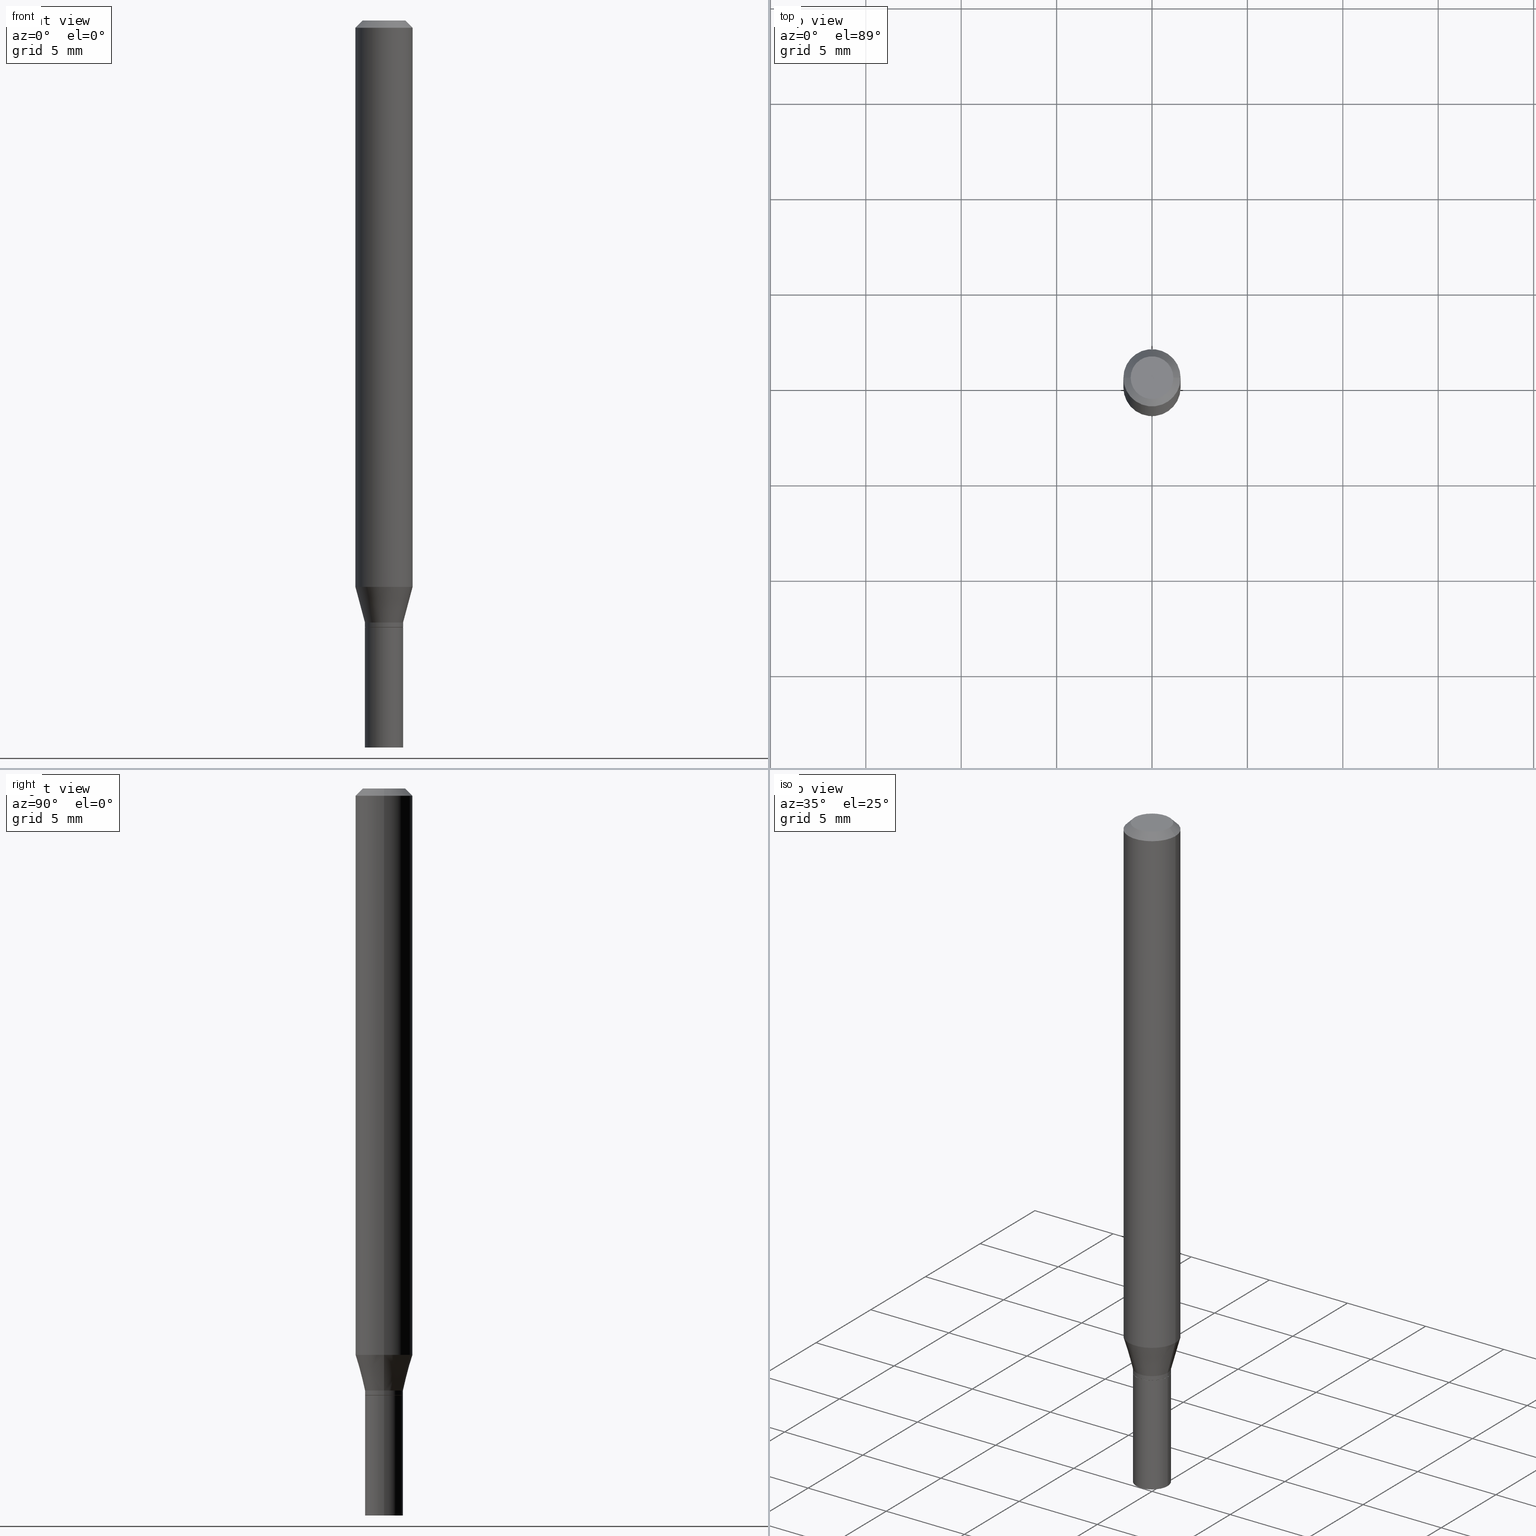
[diagram: canonical four-view strip — front | top / right | iso, engineering-drawing reading convention]
A machine part, canonical four-view strip (front | top / right | iso — engineering-drawing reading convention). The complete STEP part file that produces these views, byte-faithful:
ISO-10303-21;
HEADER;
FILE_DESCRIPTION (( 'STEP AP203' ),
    '1' );
FILE_NAME ('48801.STEP',
    '2024-03-12T19:52:40',
    ( '' ),
    ( '' ),
    'SwSTEP 2.0',
    'SolidWorks 2023',
    '' );
FILE_SCHEMA (( 'CONFIG_CONTROL_DESIGN' ));
ENDSEC;

DATA;
#1 = CIRCLE ( 'NONE', #65, 0.05904999999999999832 ) ;
#2 = AXIS2_PLACEMENT_3D ( 'NONE', #153, #81, #44 ) ;
#3 = VERTEX_POINT ( 'NONE', #158 ) ;
#4 = EDGE_CURVE ( 'NONE', #365, #29, #344, .T. ) ;
#5 =( CONVERSION_BASED_UNIT ( 'INCH', #345 ) LENGTH_UNIT ( ) NAMED_UNIT ( #381 ) );
#6 = CIRCLE ( 'NONE', #300, 0.03935000000000000303 ) ;
#7 = CALENDAR_DATE ( 2024, 12, 3 ) ;
#8 = EDGE_CURVE ( 'NONE', #72, #3, #341, .T. ) ;
#9 = DATE_AND_TIME ( #322, #155 ) ;
#10 = AXIS2_PLACEMENT_3D ( 'NONE', #242, #410, #137 ) ;
#11 = CC_DESIGN_APPROVAL ( #170, ( #68 ) ) ;
#12 = DIRECTION ( 'NONE',  ( -2.445468806185136597E-29, 3.491481338843145583E-15, 1.000000000000000000 ) ) ;
#13 = ORIENTED_EDGE ( 'NONE', *, *, #278, .T. ) ;
#14 = ADVANCED_FACE ( 'NONE', ( #347 ), #308, .F. ) ;
#15 = MANIFOLD_SOLID_BREP ( 'Body-Move/Copy2[1]', #112 ) ;
#16 = DIRECTION ( 'NONE',  ( -2.445468806185136597E-29, 3.491481338843145583E-15, 1.000000000000000000 ) ) ;
#17 = ORIENTED_EDGE ( 'NONE', *, *, #434, .F. ) ;
#19 = ORIENTED_EDGE ( 'NONE', *, *, #398, .F. ) ;
#18 = MANIFOLD_SOLID_BREP ( 'Body-Move/Copy2[2]', #77 ) ;
#20 = CARTESIAN_POINT ( 'NONE',  ( -0.03885000000000000259, -4.095288783388819989E-15, -1.252000000000000224 ) ) ;
#21 = DIRECTION ( 'NONE',  ( -2.445468806185136597E-29, 3.491481338843145583E-15, 1.000000000000000000 ) ) ;
#22 = CARTESIAN_POINT ( 'NONE',  ( 0.03935000000000000303, -5.512001589631673094E-15, -1.500000000000000222 ) ) ;
#23 = ORIENTED_EDGE ( 'NONE', *, *, #4, .T. ) ;
#24 = AXIS2_PLACEMENT_3D ( 'NONE', #151, #150, #427 ) ;
#25 = EDGE_LOOP ( 'NONE', ( #448, #351 ) ) ;
#26 = CARTESIAN_POINT ( 'NONE',  ( -0.04404999999999999888, 3.337856159934041534E-16, 3.533548453838689148E-16 ) ) ;
#27 = DIRECTION ( 'NONE',  ( -2.445468806185136597E-29, 3.491481338843145583E-15, 1.000000000000000000 ) ) ;
#28 = CARTESIAN_POINT ( 'NONE',  ( -0.03934999999999993364, 2.795985665215989516E-16, -1.935600958015302139E-30 ) ) ;
#29 = VERTEX_POINT ( 'NONE', #439 ) ;
#30 = ORIENTED_EDGE ( 'NONE', *, *, #305, .T. ) ;
#31 = DIRECTION ( 'NONE',  ( 0.7071067811865656694, -2.468850131082446387E-15, 0.7071067811865294761 ) ) ;
#32 = FACE_OUTER_BOUND ( 'NONE', #100, .T. ) ;
#33 = LINE ( 'NONE', #185, #342 ) ;
#34 = CC_DESIGN_PERSON_AND_ORGANIZATION_ASSIGNMENT ( #48, #375, ( #445 ) ) ;
#35 = EDGE_LOOP ( 'NONE', ( #385, #393, #359, #366 ) ) ;
#36 = DIRECTION ( 'NONE',  ( 1.000000000000000000, -6.982962677686269077E-15, 0.000000000000000000 ) ) ;
#37 = CONICAL_SURFACE ( 'NONE', #314, 0.03885000000000000259, 0.7853981633974739252 ) ;
#38 = ADVANCED_FACE ( 'NONE', ( #277 ), #422, .T. ) ;
#39 = AXIS2_PLACEMENT_3D ( 'NONE', #115, #405, #402 ) ;
#40 = LINE ( 'NONE', #465, #47 ) ;
#41 = APPROVAL_PERSON_ORGANIZATION ( #320, #170, #166 ) ;
#42 = CARTESIAN_POINT ( 'NONE',  ( 0.000000000000000000, 0.000000000000000000, 0.000000000000000000 ) ) ;
#43 = DIRECTION ( 'NONE',  ( 1.000000000000000000, -6.982962677686266711E-15, 0.000000000000000000 ) ) ;
#44 = DIRECTION ( 'NONE',  ( 1.000000000000000000, -6.982962677686269077E-15, 0.000000000000000000 ) ) ;
#45 = EDGE_CURVE ( 'NONE', #423, #255, #335, .T. ) ;
#46 = EDGE_CURVE ( 'NONE', #179, #148, #451, .T. ) ;
#47 = VECTOR ( 'NONE', #268, 39.37007874015748143 ) ;
#48 = PERSON_AND_ORGANIZATION ( #160, #349 ) ;
#49 = CARTESIAN_POINT ( 'NONE',  ( 2.857477964771687293E-29, -4.079721223563434330E-15, -1.168478599090893244 ) ) ;
#50 = PLANE ( 'NONE',  #10 ) ;
#51 = SHAPE_DEFINITION_REPRESENTATION ( #131, #224 ) ;
#52 = ADVANCED_FACE ( 'NONE', ( #213 ), #98, .F. ) ;
#53 = EDGE_LOOP ( 'NONE', ( #454, #97, #418, #63 ) ) ;
#54 = COORDINATED_UNIVERSAL_TIME_OFFSET ( 5, 0, .BEHIND. ) ;
#55 = DESIGN_CONTEXT ( 'detailed design', #273, 'design' ) ;
#56 = AXIS2_PLACEMENT_3D ( 'NONE', #225, #459, #426 ) ;
#57 = ORIENTED_EDGE ( 'NONE', *, *, #319, .F. ) ;
#58 = APPROVAL_DATE_TIME ( #162, #355 ) ;
#59 = VERTEX_POINT ( 'NONE', #363 ) ;
#60 = FACE_OUTER_BOUND ( 'NONE', #53, .T. ) ;
#61 = DIRECTION ( 'NONE',  ( 1.000000000000000000, -6.982962677686256455E-15, 0.000000000000000000 ) ) ;
#62 = ORIENTED_EDGE ( 'NONE', *, *, #229, .T. ) ;
#63 = ORIENTED_EDGE ( 'NONE', *, *, #101, .F. ) ;
#64 = CARTESIAN_POINT ( 'NONE',  ( 3.668203209277704895E-29, -5.237222008264718177E-15, -1.500000000000000222 ) ) ;
#65 = AXIS2_PLACEMENT_3D ( 'NONE', #49, #202, #186 ) ;
#66 = FACE_OUTER_BOUND ( 'NONE', #139, .T. ) ;
#67 = EDGE_LOOP ( 'NONE', ( #360, #295, #85, #415 ) ) ;
#68 = PRODUCT_DEFINITION_FORMATION_WITH_SPECIFIED_SOURCE ( 'ANY', '', #208, .NOT_KNOWN. ) ;
#69 = VERTEX_POINT ( 'NONE', #26 ) ;
#70 = CC_DESIGN_PERSON_AND_ORGANIZATION_ASSIGNMENT ( #156, #312, ( #208 ) ) ;
#71 = CYLINDRICAL_SURFACE ( 'NONE', #437, 0.05905000000000000526 ) ;
#72 = VERTEX_POINT ( 'NONE', #331 ) ;
#73 = CARTESIAN_POINT ( 'NONE',  ( 3.037272257281939846E-29, -4.336419822843186836E-15, -1.241999999999999993 ) ) ;
#74 = DIRECTION ( 'NONE',  ( -2.445468806185136597E-29, 3.491481338843145583E-15, 1.000000000000000000 ) ) ;
#75 = CARTESIAN_POINT ( 'NONE',  ( 0.05905000000000001914, -4.574846268510562433E-16, -0.01499999999999999944 ) ) ;
#76 = DIRECTION ( 'NONE',  ( 2.445468806185136597E-29, -3.491481338843145583E-15, -1.000000000000000000 ) ) ;
#77 = CLOSED_SHELL ( 'NONE', ( #464, #174, #193, #346, #38, #106, #220, #324, #14, #124, #133, #122 ) ) ;
#78 = FACE_OUTER_BOUND ( 'NONE', #94, .T. ) ;
#79 = MECHANICAL_CONTEXT ( 'NONE', #466, 'mechanical' ) ;
#80 =( NAMED_UNIT ( * ) SI_UNIT ( $, .STERADIAN. ) SOLID_ANGLE_UNIT ( ) );
#81 = DIRECTION ( 'NONE',  ( -2.445468806185136597E-29, 3.491481338843145583E-15, 1.000000000000000000 ) ) ;
#82 = AXIS2_PLACEMENT_3D ( 'NONE', #432, #114, #199 ) ;
#83 = APPROVAL_PERSON_ORGANIZATION ( #377, #355, #441 ) ;
#84 =( LENGTH_UNIT ( ) NAMED_UNIT ( * ) SI_UNIT ( $, .METRE. ) );
#85 = ORIENTED_EDGE ( 'NONE', *, *, #8, .F. ) ;
#86 = DATE_AND_TIME ( #283, #104 ) ;
#87 = CC_DESIGN_APPROVAL ( #118, ( #445 ) ) ;
#88 = DIRECTION ( 'NONE',  ( 1.000000000000000000, -6.982962677686266711E-15, 4.876176775795935793E-29 ) ) ;
#89 = EDGE_CURVE ( 'NONE', #59, #365, #455, .T. ) ;
#90 = PERSON_AND_ORGANIZATION ( #160, #349 ) ;
#91 = CARTESIAN_POINT ( 'NONE',  ( 3.037272257281939846E-29, -4.336419822843186836E-15, -1.241999999999999993 ) ) ;
#92 = ORIENTED_EDGE ( 'NONE', *, *, #198, .T. ) ;
#93 = ORIENTED_EDGE ( 'NONE', *, *, #298, .F. ) ;
#94 = EDGE_LOOP ( 'NONE', ( #19, #412, #387, #262 ) ) ;
#95 = FACE_OUTER_BOUND ( 'NONE', #453, .T. ) ;
#96 = ORIENTED_EDGE ( 'NONE', *, *, #334, .T. ) ;
#97 = ORIENTED_EDGE ( 'NONE', *, *, #46, .T. ) ;
#98 = PLANE ( 'NONE',  #430 ) ;
#99 = CARTESIAN_POINT ( 'NONE',  ( 0.05905000000000000526, -4.123439461173741313E-16, 2.879382386107500571E-30 ) ) ;
#100 = EDGE_LOOP ( 'NONE', ( #362, #92, #243, #419 ) ) ;
#101 = EDGE_CURVE ( 'NONE', #135, #152, #296, .T. ) ;
#102 = CARTESIAN_POINT ( 'NONE',  ( 0.03935000000000000303, -2.747795813669546211E-16, 1.918775561275701074E-30 ) ) ;
#103 = DIRECTION ( 'NONE',  ( -2.445468806185136597E-29, 3.491481338843145583E-15, 1.000000000000000000 ) ) ;
#104 = LOCAL_TIME ( 15, 52, 40.00000000000000000, #125 ) ;
#105 = VERTEX_POINT ( 'NONE', #389 ) ;
#106 = ADVANCED_FACE ( 'NONE', ( #78 ), #399, .T. ) ;
#107 = CARTESIAN_POINT ( 'NONE',  ( -0.03934999999999992670, -4.089990329040599164E-15, -1.251500000000000279 ) ) ;
#108 = CARTESIAN_POINT ( 'NONE',  ( 3.060504210940699150E-29, -4.369588895562197771E-15, -1.251500000000000279 ) ) ;
#109 = CC_DESIGN_PERSON_AND_ORGANIZATION_ASSIGNMENT ( #239, #411, ( #68 ) ) ;
#110 = DIRECTION ( 'NONE',  ( -1.000000000000000000, 6.982962677686266711E-15, 0.000000000000000000 ) ) ;
#111 = DIRECTION ( 'NONE',  ( 1.000000000000000000, -6.982962677686266711E-15, 4.876176775795936353E-29 ) ) ;
#112 = CLOSED_SHELL ( 'NONE', ( #276, #390, #281, #52 ) ) ;
#113 = CIRCLE ( 'NONE', #280, 0.03935000000000000303 ) ;
#114 = DIRECTION ( 'NONE',  ( 2.438088387897960049E-29, -3.491481338843145188E-15, -1.000000000000000000 ) ) ;
#115 = CARTESIAN_POINT ( 'NONE',  ( 3.061726945343791391E-29, -4.371334636231619274E-15, -1.252000000000000224 ) ) ;
#116 = PERSON_AND_ORGANIZATION ( #160, #349 ) ;
#117 = PRODUCT_RELATED_PRODUCT_CATEGORY ( 'detail', '', ( #208 ) ) ;
#118 = APPROVAL ( #317, 'UNSPECIFIED' ) ;
#119 = CARTESIAN_POINT ( 'NONE',  ( 0.03934999999999993364, -2.747795813669541281E-16, 1.918775561275697570E-30 ) ) ;
#120 = AXIS2_PLACEMENT_3D ( 'NONE', #159, #311, #271 ) ;
#121 = CARTESIAN_POINT ( 'NONE',  ( 3.668203209277705088E-31, -5.237222008264718399E-17, -0.01499999999999999944 ) ) ;
#122 = ADVANCED_FACE ( 'NONE', ( #207 ), #203, .T. ) ;
#123 = CALENDAR_DATE ( 2024, 12, 3 ) ;
#124 = ADVANCED_FACE ( 'NONE', ( #209 ), #50, .F. ) ;
#125 = COORDINATED_UNIVERSAL_TIME_OFFSET ( 5, 0, .BEHIND. ) ;
#126 = AXIS2_PLACEMENT_3D ( 'NONE', #372, #228, #200 ) ;
#127 = APPROVAL_STATUS ( 'not_yet_approved' ) ;
#128 = CC_DESIGN_DATE_AND_TIME_ASSIGNMENT ( #357, #168, ( #445 ) ) ;
#129 = EDGE_CURVE ( 'NONE', #148, #152, #6, .T. ) ;
#130 = ORIENTED_EDGE ( 'NONE', *, *, #334, .F. ) ;
#131 = PRODUCT_DEFINITION_SHAPE ( 'NONE', 'NONE',  #445 ) ;
#132 = CIRCLE ( 'NONE', #274, 0.04404999999999999888 ) ;
#133 = ADVANCED_FACE ( 'NONE', ( #95 ), #154, .T. ) ;
#134 = AXIS2_PLACEMENT_3D ( 'NONE', #73, #417, #36 ) ;
#135 = VERTEX_POINT ( 'NONE', #22 ) ;
#136 = DIRECTION ( 'NONE',  ( -2.445468806185136597E-29, 3.491481338843145583E-15, 1.000000000000000000 ) ) ;
#137 = DIRECTION ( 'NONE',  ( 1.000000000000000000, -6.982962677686265922E-15, 4.876176775795935793E-29 ) ) ;
#138 = ORIENTED_EDGE ( 'NONE', *, *, #101, .T. ) ;
#139 = EDGE_LOOP ( 'NONE', ( #180, #285, #138, #356 ) ) ;
#140 = CARTESIAN_POINT ( 'NONE',  ( 0.03885000000000000259, -4.642622736259730395E-15, -1.252000000000000224 ) ) ;
#141 = DIRECTION ( 'NONE',  ( -2.445468806185136597E-29, 3.491481338843145583E-15, 1.000000000000000000 ) ) ;
#142 = EDGE_CURVE ( 'NONE', #379, #3, #409, .T. ) ;
#143 = EDGE_LOOP ( 'NONE', ( #329, #291, #204, #176 ) ) ;
#144 = CARTESIAN_POINT ( 'NONE',  ( -0.03935000000000000303, 2.795985665215994447E-16, -1.935600958015305291E-30 ) ) ;
#145 = AXIS2_PLACEMENT_3D ( 'NONE', #325, #250, #61 ) ;
#146 = LINE ( 'NONE', #28, #431 ) ;
#147 = VECTOR ( 'NONE', #254, 39.37007874015748143 ) ;
#148 = VERTEX_POINT ( 'NONE', #201 ) ;
#149 = CARTESIAN_POINT ( 'NONE',  ( 3.061726945343791391E-29, -4.371334636231619274E-15, -1.252000000000000224 ) ) ;
#150 = DIRECTION ( 'NONE',  ( -2.445468806185136597E-29, 3.491481338843145583E-15, 1.000000000000000000 ) ) ;
#151 = CARTESIAN_POINT ( 'NONE',  ( 2.857477964771687293E-29, -4.079721223563434330E-15, -1.168478599090893244 ) ) ;
#152 = VERTEX_POINT ( 'NONE', #350 ) ;
#153 = CARTESIAN_POINT ( 'NONE',  ( 3.037272257281939846E-29, -4.336419822843186836E-15, -1.241999999999999993 ) ) ;
#154 = CONICAL_SURFACE ( 'NONE', #145, 0.03885000000000000259, 0.7853981633974739252 ) ;
#155 = LOCAL_TIME ( 15, 52, 40.00000000000000000, #438 ) ;
#156 = PERSON_AND_ORGANIZATION ( #160, #349 ) ;
#157 = EDGE_CURVE ( 'NONE', #210, #379, #1, .T. ) ;
#158 = CARTESIAN_POINT ( 'NONE',  ( -0.05905000000000002608, -1.646471236356701803E-15, -0.01499999999999999944 ) ) ;
#159 = CARTESIAN_POINT ( 'NONE',  ( 3.061726945343791391E-29, -4.371334636231619274E-15, -1.252000000000000224 ) ) ;
#160 = PERSON ( 'UNSPECIFIED', 'UNSPECIFIED', 'UNSPECIFIED', ('UNSPECIFIED'), ('UNSPECIFIED'), ('UNSPECIFIED') ) ;
#161 = DIRECTION ( 'NONE',  ( 1.000000000000000000, 0.000000000000000000, 0.000000000000000000 ) ) ;
#162 = DATE_AND_TIME ( #123, #406 ) ;
#163 = AXIS2_PLACEMENT_3D ( 'NONE', #64, #181, #219 ) ;
#164 = CIRCLE ( 'NONE', #461, 0.03885000000000000259 ) ;
#165 = COORDINATED_UNIVERSAL_TIME_OFFSET ( 5, 0, .BEHIND. ) ;
#166 = APPROVAL_ROLE ( '' ) ;
#167 = EDGE_CURVE ( 'NONE', #105, #69, #132, .T. ) ;
#168 = DATE_TIME_ROLE ( 'creation_date' ) ;
#169 = CONICAL_SURFACE ( 'NONE', #449, 0.05905000000000001914, 0.7853981633974372878 ) ;
#170 = APPROVAL ( #127, 'UNSPECIFIED' ) ;
#171 = EDGE_LOOP ( 'NONE', ( #96, #30, #289, #416 ) ) ;
#172 = SECURITY_CLASSIFICATION_LEVEL ( 'unclassified' ) ;
#173 = CARTESIAN_POINT ( 'NONE',  ( 0.000000000000000000, 0.000000000000000000, 0.000000000000000000 ) ) ;
#174 = ADVANCED_FACE ( 'NONE', ( #184 ), #37, .T. ) ;
#175 = DIRECTION ( 'NONE',  ( 1.000000000000000000, -6.982962677686269077E-15, 0.000000000000000000 ) ) ;
#176 = ORIENTED_EDGE ( 'NONE', *, *, #373, .F. ) ;
#177 = CC_DESIGN_PERSON_AND_ORGANIZATION_ASSIGNMENT ( #90, #440, ( #371 ) ) ;
#178 = DIRECTION ( 'NONE',  ( -1.000000000000000000, 6.982962677686266711E-15, 0.000000000000000000 ) ) ;
#179 = VERTEX_POINT ( 'NONE', #458 ) ;
#180 = ORIENTED_EDGE ( 'NONE', *, *, #46, .F. ) ;
#181 = DIRECTION ( 'NONE',  ( -2.445468806185136597E-29, 3.491481338843145583E-15, 1.000000000000000000 ) ) ;
#182 = DIRECTION ( 'NONE',  ( 1.000000000000000000, -6.982962677686269077E-15, 0.000000000000000000 ) ) ;
#183 = ORIENTED_EDGE ( 'NONE', *, *, #45, .T. ) ;
#184 = FACE_OUTER_BOUND ( 'NONE', #212, .T. ) ;
#185 = CARTESIAN_POINT ( 'NONE',  ( 0.03934999999999993364, -4.611199404210140965E-15, -1.241999999999999993 ) ) ;
#186 = DIRECTION ( 'NONE',  ( 1.000000000000000000, -6.982962677686273021E-15, 0.000000000000000000 ) ) ;
#187 = CARTESIAN_POINT ( 'NONE',  ( 0.03934999999999992670, -4.644368476929151899E-15, -1.251500000000000279 ) ) ;
#188 = EDGE_CURVE ( 'NONE', #179, #135, #436, .T. ) ;
#189 = DIRECTION ( 'NONE',  ( 1.000000000000000000, -6.982962677686256455E-15, 0.000000000000000000 ) ) ;
#190 = DIRECTION ( 'NONE',  ( 2.445468806185136597E-29, -3.491481338843145583E-15, -1.000000000000000000 ) ) ;
#191 =( NAMED_UNIT ( * ) PLANE_ANGLE_UNIT ( ) SI_UNIT ( $, .RADIAN. ) );
#192 = CARTESIAN_POINT ( 'NONE',  ( 0.000000000000000000, 0.000000000000000000, 0.000000000000000000 ) ) ;
#193 = ADVANCED_FACE ( 'NONE', ( #32 ), #206, .T. ) ;
#194 = VECTOR ( 'NONE', #425, 39.37007874015748143 ) ;
#195 = VECTOR ( 'NONE', #266, 39.37007874015748143 ) ;
#196 = ORIENTED_EDGE ( 'NONE', *, *, #413, .F. ) ;
#197 = CYLINDRICAL_SURFACE ( 'NONE', #408, 0.05905000000000000526 ) ;
#198 = EDGE_CURVE ( 'NONE', #105, #72, #396, .T. ) ;
#199 = DIRECTION ( 'NONE',  ( -1.000000000000000000, 6.982962677686265922E-15, -4.876176775795935793E-29 ) ) ;
#200 = DIRECTION ( 'NONE',  ( 1.000000000000000000, -6.982962677686266711E-15, 0.000000000000000000 ) ) ;
#201 = CARTESIAN_POINT ( 'NONE',  ( -0.03935000000000000303, -4.524679755726570119E-15, -1.252000000000000224 ) ) ;
#202 = DIRECTION ( 'NONE',  ( -2.445468806185136597E-29, 3.491481338843145583E-15, 1.000000000000000000 ) ) ;
#203 = CYLINDRICAL_SURFACE ( 'NONE', #257, 0.03934999999999993364 ) ;
#204 = ORIENTED_EDGE ( 'NONE', *, *, #157, .F. ) ;
#205 = APPROVAL_ROLE ( '' ) ;
#206 = CONICAL_SURFACE ( 'NONE', #450, 0.05905000000000001914, 0.7853981633974372878 ) ;
#207 = FACE_OUTER_BOUND ( 'NONE', #294, .T. ) ;
#208 = PRODUCT ( '48801', '48801', '', ( #79 ) ) ;
#209 = FACE_OUTER_BOUND ( 'NONE', #414, .T. ) ;
#210 = VERTEX_POINT ( 'NONE', #404 ) ;
#211 = CARTESIAN_POINT ( 'NONE',  ( 3.060504210940699150E-29, -4.369588895562197771E-15, -1.251500000000000279 ) ) ;
#212 = EDGE_LOOP ( 'NONE', ( #380, #183, #130, #378 ) ) ;
#213 = FACE_OUTER_BOUND ( 'NONE', #25, .T. ) ;
#214 = VECTOR ( 'NONE', #376, 39.37007874015748143 ) ;
#215 = VECTOR ( 'NONE', #395, 39.37007874015748143 ) ;
#216 = DIRECTION ( 'NONE',  ( -2.445468806185136597E-29, 3.491481338843145583E-15, 1.000000000000000000 ) ) ;
#217 = ORIENTED_EDGE ( 'NONE', *, *, #434, .T. ) ;
#218 = ORIENTED_EDGE ( 'NONE', *, *, #240, .F. ) ;
#219 = DIRECTION ( 'NONE',  ( 1.000000000000000000, -6.982962677686269077E-15, 0.000000000000000000 ) ) ;
#220 = ADVANCED_FACE ( 'NONE', ( #340 ), #197, .T. ) ;
#221 = FACE_OUTER_BOUND ( 'NONE', #35, .T. ) ;
#222 = ORIENTED_EDGE ( 'NONE', *, *, #45, .F. ) ;
#223 = CARTESIAN_POINT ( 'NONE',  ( 3.668203209277705088E-31, -5.237222008264718399E-17, -0.01499999999999999944 ) ) ;
#224 = ADVANCED_BREP_SHAPE_REPRESENTATION ( '48801', ( #15, #18, #237 ), #443 ) ;
#225 = CARTESIAN_POINT ( 'NONE',  ( 3.576687321579069994E-29, -5.368277968210015545E-15, -1.500000000000000222 ) ) ;
#226 = CIRCLE ( 'NONE', #267, 0.03934999999999992670 ) ;
#227 = EDGE_CURVE ( 'NONE', #69, #3, #463, .T. ) ;
#228 = DIRECTION ( 'NONE',  ( -2.445468806185136597E-29, 3.491481338843145583E-15, 1.000000000000000000 ) ) ;
#229 = EDGE_CURVE ( 'NONE', #379, #210, #400, .T. ) ;
#230 = CARTESIAN_POINT ( 'NONE',  ( -0.03885000000000000259, -4.092639556214709577E-15, -1.252000000000000224 ) ) ;
#231 = VECTOR ( 'NONE', #382, 39.37007874015748143 ) ;
#232 = CIRCLE ( 'NONE', #39, 0.03885000000000000259 ) ;
#233 = CC_DESIGN_SECURITY_CLASSIFICATION ( #371, ( #68 ) ) ;
#234 = DIRECTION ( 'NONE',  ( -2.445468806185136597E-29, 3.491481338843145583E-15, 1.000000000000000000 ) ) ;
#235 = CC_DESIGN_PERSON_AND_ORGANIZATION_ASSIGNMENT ( #279, #318, ( #68 ) ) ;
#236 = APPROVAL_DATE_TIME ( #86, #170 ) ;
#237 = AXIS2_PLACEMENT_3D ( 'NONE', #192, #343, #161 ) ;
#238 = CARTESIAN_POINT ( 'NONE',  ( -0.05905000000000000526, 4.195754854663391971E-16, -2.904631170795522242E-30 ) ) ;
#239 = PERSON_AND_ORGANIZATION ( #160, #349 ) ;
#240 = EDGE_CURVE ( 'NONE', #59, #423, #164, .T. ) ;
#241 = DATE_TIME_ROLE ( 'classification_date' ) ;
#242 = CARTESIAN_POINT ( 'NONE',  ( 3.061726945343791391E-29, -4.371334636231619274E-15, -1.252000000000000224 ) ) ;
#243 = ORIENTED_EDGE ( 'NONE', *, *, #8, .T. ) ;
#244 = DATE_AND_TIME ( #353, #302 ) ;
#245 = AXIS2_PLACEMENT_3D ( 'NONE', #407, #323, #299 ) ;
#246 = CIRCLE ( 'NONE', #2, 0.03934999999999993364 ) ;
#247 = DIRECTION ( 'NONE',  ( -2.445468806185136597E-29, 3.491481338843145583E-15, 1.000000000000000000 ) ) ;
#248 = ORIENTED_EDGE ( 'NONE', *, *, #298, .T. ) ;
#249 = ORIENTED_EDGE ( 'NONE', *, *, #429, .F. ) ;
#250 = DIRECTION ( 'NONE',  ( -2.445468806185136597E-29, 3.491481338843145583E-15, 1.000000000000000000 ) ) ;
#251 = ORIENTED_EDGE ( 'NONE', *, *, #188, .F. ) ;
#252 = DIRECTION ( 'NONE',  ( 2.438088387897960049E-29, -3.491481338843145188E-15, -1.000000000000000000 ) ) ;
#253 = CARTESIAN_POINT ( 'NONE',  ( -8.641182519006289553E-45, 1.233731848647591164E-30, 3.533548453838711334E-16 ) ) ;
#254 = DIRECTION ( 'NONE',  ( -0.7071067811865396902, 2.468850131082174625E-15, -0.7071067811865553443 ) ) ;
#255 = VERTEX_POINT ( 'NONE', #107 ) ;
#256 = DIRECTION ( 'NONE',  ( -2.445468806185136877E-29, 3.491481338843145188E-15, 1.000000000000000000 ) ) ;
#257 = AXIS2_PLACEMENT_3D ( 'NONE', #447, #12, #88 ) ;
#258 = LOCAL_TIME ( 15, 52, 40.00000000000000000, #165 ) ;
#259 = FACE_OUTER_BOUND ( 'NONE', #67, .T. ) ;
#260 = ORIENTED_EDGE ( 'NONE', *, *, #142, .F. ) ;
#261 = CYLINDRICAL_SURFACE ( 'NONE', #321, 0.03935000000000000303 ) ;
#262 = ORIENTED_EDGE ( 'NONE', *, *, #229, .F. ) ;
#263 = DIRECTION ( 'NONE',  ( -2.445468806185136597E-29, 3.491481338843145583E-15, 1.000000000000000000 ) ) ;
#264 = CARTESIAN_POINT ( 'NONE',  ( 0.000000000000000000, 0.000000000000000000, 0.000000000000000000 ) ) ;
#265 = EDGE_CURVE ( 'NONE', #29, #304, #315, .T. ) ;
#266 = DIRECTION ( 'NONE',  ( 0.7071067811865396902, -7.319954787623229224E-15, -0.7071067811865553443 ) ) ;
#267 = AXIS2_PLACEMENT_3D ( 'NONE', #211, #216, #367 ) ;
#268 = DIRECTION ( 'NONE',  ( -0.2588190451025215721, 5.211531920934551831E-15, 0.9659258262890679791 ) ) ;
#269 = AXIS2_PLACEMENT_3D ( 'NONE', #392, #103, #456 ) ;
#270 = DIRECTION ( 'NONE',  ( -2.445468806185136597E-29, 3.491481338843145583E-15, 1.000000000000000000 ) ) ;
#271 = DIRECTION ( 'NONE',  ( 1.000000000000000000, -6.982962677686269077E-15, 0.000000000000000000 ) ) ;
#272 = DIRECTION ( 'NONE',  ( -2.445468806185136877E-29, 3.491481338843145188E-15, 1.000000000000000000 ) ) ;
#273 = APPLICATION_CONTEXT ( 'configuration controlled 3d designs of mechanical parts and assemblies' ) ;
#274 = AXIS2_PLACEMENT_3D ( 'NONE', #253, #263, #383 ) ;
#275 = AXIS2_PLACEMENT_3D ( 'NONE', #307, #136, #452 ) ;
#276 = ADVANCED_FACE ( 'NONE', ( #60 ), #261, .T. ) ;
#277 = FACE_OUTER_BOUND ( 'NONE', #143, .T. ) ;
#278 = EDGE_CURVE ( 'NONE', #210, #72, #384, .T. ) ;
#279 = PERSON_AND_ORGANIZATION ( #160, #349 ) ;
#280 = AXIS2_PLACEMENT_3D ( 'NONE', #306, #370, #182 ) ;
#281 = ADVANCED_FACE ( 'NONE', ( #66 ), #364, .T. ) ;
#282 = DIRECTION ( 'NONE',  ( 1.000000000000000000, -6.982962677686269077E-15, 0.000000000000000000 ) ) ;
#283 = CALENDAR_DATE ( 2024, 12, 3 ) ;
#284 = EDGE_CURVE ( 'NONE', #69, #105, #388, .T. ) ;
#285 = ORIENTED_EDGE ( 'NONE', *, *, #188, .T. ) ;
#286 = COORDINATED_UNIVERSAL_TIME_OFFSET ( 5, 0, .BEHIND. ) ;
#287 = ORIENTED_EDGE ( 'NONE', *, *, #305, .F. ) ;
#288 = CC_DESIGN_DATE_AND_TIME_ASSIGNMENT ( #244, #241, ( #371 ) ) ;
#289 = ORIENTED_EDGE ( 'NONE', *, *, #265, .F. ) ;
#290 = AXIS2_PLACEMENT_3D ( 'NONE', #42, #270, #313 ) ;
#291 = ORIENTED_EDGE ( 'NONE', *, *, #398, .T. ) ;
#292 = EDGE_LOOP ( 'NONE', ( #260, #62, #13, #249 ) ) ;
#293 = DIRECTION ( 'NONE',  ( -2.445468806185136597E-29, 3.491481338843145583E-15, 1.000000000000000000 ) ) ;
#294 = EDGE_LOOP ( 'NONE', ( #287, #248, #23, #196 ) ) ;
#295 = ORIENTED_EDGE ( 'NONE', *, *, #142, .T. ) ;
#296 = LINE ( 'NONE', #102, #442 ) ;
#297 = DIRECTION ( 'NONE',  ( -2.445468806185136597E-29, 3.491481338843145583E-15, 1.000000000000000000 ) ) ;
#298 = EDGE_CURVE ( 'NONE', #255, #365, #226, .T. ) ;
#299 = DIRECTION ( 'NONE',  ( 1.000000000000000000, -6.982962677686269077E-15, 0.000000000000000000 ) ) ;
#300 = AXIS2_PLACEMENT_3D ( 'NONE', #358, #16, #175 ) ;
#301 = CARTESIAN_POINT ( 'NONE',  ( 3.668203209277705088E-31, -5.237222008264718399E-17, -0.01499999999999999944 ) ) ;
#302 = LOCAL_TIME ( 15, 52, 40.00000000000000000, #286 ) ;
#303 = FACE_OUTER_BOUND ( 'NONE', #460, .T. ) ;
#304 = VERTEX_POINT ( 'NONE', #339 ) ;
#305 = EDGE_CURVE ( 'NONE', #255, #304, #146, .T. ) ;
#306 = CARTESIAN_POINT ( 'NONE',  ( 3.668203209277704895E-29, -5.237222008264718177E-15, -1.500000000000000222 ) ) ;
#307 = CARTESIAN_POINT ( 'NONE',  ( 0.000000000000000000, 0.000000000000000000, 0.000000000000000000 ) ) ;
#308 = PLANE ( 'NONE',  #82 ) ;
#309 = VECTOR ( 'NONE', #31, 39.37007874015748143 ) ;
#310 = AXIS2_PLACEMENT_3D ( 'NONE', #108, #141, #428 ) ;
#311 = DIRECTION ( 'NONE',  ( -2.445468806185136597E-29, 3.491481338843145583E-15, 1.000000000000000000 ) ) ;
#312 = PERSON_AND_ORGANIZATION_ROLE ( 'design_owner' ) ;
#313 = DIRECTION ( 'NONE',  ( 1.000000000000000000, -6.982962677686266711E-15, 4.876176775795935793E-29 ) ) ;
#314 = AXIS2_PLACEMENT_3D ( 'NONE', #149, #27, #391 ) ;
#315 = CIRCLE ( 'NONE', #134, 0.03934999999999993364 ) ;
#316 = ORIENTED_EDGE ( 'NONE', *, *, #167, .T. ) ;
#317 = APPROVAL_STATUS ( 'not_yet_approved' ) ;
#318 = PERSON_AND_ORGANIZATION_ROLE ( 'creator' ) ;
#319 = EDGE_CURVE ( 'NONE', #135, #179, #113, .T. ) ;
#320 = PERSON_AND_ORGANIZATION ( #160, #349 ) ;
#321 = AXIS2_PLACEMENT_3D ( 'NONE', #333, #21, #111 ) ;
#322 = CALENDAR_DATE ( 2024, 12, 3 ) ;
#323 = DIRECTION ( 'NONE',  ( -2.445468806185136597E-29, 3.491481338843145583E-15, 1.000000000000000000 ) ) ;
#324 = ADVANCED_FACE ( 'NONE', ( #221 ), #169, .T. ) ;
#325 = CARTESIAN_POINT ( 'NONE',  ( 3.061726945343791391E-29, -4.371334636231619274E-15, -1.252000000000000224 ) ) ;
#326 = ORIENTED_EDGE ( 'NONE', *, *, #284, .T. ) ;
#327 = CIRCLE ( 'NONE', #120, 0.03935000000000000303 ) ;
#328 = PLANE ( 'NONE',  #56 ) ;
#329 = ORIENTED_EDGE ( 'NONE', *, *, #265, .T. ) ;
#330 = EDGE_LOOP ( 'NONE', ( #326, #316 ) ) ;
#331 = CARTESIAN_POINT ( 'NONE',  ( 0.05905000000000001914, -4.647161662000214077E-16, -0.01499999999999999944 ) ) ;
#332 = DIRECTION ( 'NONE',  ( 1.000000000000000000, -6.982962677686267499E-15, 4.876176775795936353E-29 ) ) ;
#333 = CARTESIAN_POINT ( 'NONE',  ( 0.000000000000000000, 0.000000000000000000, 0.000000000000000000 ) ) ;
#334 = EDGE_CURVE ( 'NONE', #365, #255, #354, .T. ) ;
#335 = LINE ( 'NONE', #20, #231 ) ;
#336 = DIRECTION ( 'NONE',  ( 0.2588190451025215721, 1.565188264969619995E-15, 0.9659258262890679791 ) ) ;
#337 = ORIENTED_EDGE ( 'NONE', *, *, #89, .T. ) ;
#338 = CARTESIAN_POINT ( 'NONE',  ( -0.05904999999999999832, -3.660145738097095626E-15, -1.168478599090893244 ) ) ;
#339 = CARTESIAN_POINT ( 'NONE',  ( -0.03934999999999993364, -3.858483497209341928E-15, -1.241999999999999993 ) ) ;
#340 = FACE_OUTER_BOUND ( 'NONE', #292, .T. ) ;
#341 = CIRCLE ( 'NONE', #386, 0.05905000000000001914 ) ;
#342 = VECTOR ( 'NONE', #336, 39.37007874015748143 ) ;
#343 = DIRECTION ( 'NONE',  ( 0.000000000000000000, 0.000000000000000000, 1.000000000000000000 ) ) ;
#344 = LINE ( 'NONE', #119, #352 ) ;
#345 = LENGTH_MEASURE_WITH_UNIT ( LENGTH_MEASURE( 0.02539999999999999897 ), #84 );
#346 = ADVANCED_FACE ( 'NONE', ( #259 ), #71, .T. ) ;
#347 = FACE_OUTER_BOUND ( 'NONE', #330, .T. ) ;
#348 = AXIS2_PLACEMENT_3D ( 'NONE', #91, #247, #282 ) ;
#349 = ORGANIZATION ( 'UNSPECIFIED', 'UNSPECIFIED', '' ) ;
#350 = CARTESIAN_POINT ( 'NONE',  ( 0.03935000000000000303, -4.646114217598574191E-15, -1.252000000000000224 ) ) ;
#351 = ORIENTED_EDGE ( 'NONE', *, *, #129, .T. ) ;
#352 = VECTOR ( 'NONE', #272, 39.37007874015748143 ) ;
#353 = CALENDAR_DATE ( 2024, 12, 3 ) ;
#354 = CIRCLE ( 'NONE', #310, 0.03934999999999992670 ) ;
#355 = APPROVAL ( #446, 'UNSPECIFIED' ) ;
#356 = ORIENTED_EDGE ( 'NONE', *, *, #129, .F. ) ;
#357 = DATE_AND_TIME ( #7, #258 ) ;
#358 = CARTESIAN_POINT ( 'NONE',  ( 3.061726945343791391E-29, -4.371334636231619274E-15, -1.252000000000000224 ) ) ;
#359 = ORIENTED_EDGE ( 'NONE', *, *, #227, .T. ) ;
#360 = ORIENTED_EDGE ( 'NONE', *, *, #157, .T. ) ;
#361 = DIRECTION ( 'NONE',  ( -2.445468806185136877E-29, 3.491481338843145188E-15, 1.000000000000000000 ) ) ;
#362 = ORIENTED_EDGE ( 'NONE', *, *, #167, .F. ) ;
#363 = CARTESIAN_POINT ( 'NONE',  ( 0.03885000000000000259, -4.642622736259730395E-15, -1.252000000000000224 ) ) ;
#364 = CYLINDRICAL_SURFACE ( 'NONE', #275, 0.03935000000000000303 ) ;
#365 = VERTEX_POINT ( 'NONE', #187 ) ;
#366 = ORIENTED_EDGE ( 'NONE', *, *, #429, .T. ) ;
#367 = DIRECTION ( 'NONE',  ( 1.000000000000000000, -6.982962677686258033E-15, 0.000000000000000000 ) ) ;
#368 = DIRECTION ( 'NONE',  ( 1.000000000000000000, -6.982962677686267499E-15, 4.876176775795936353E-29 ) ) ;
#369 = APPROVAL_PERSON_ORGANIZATION ( #116, #118, #205 ) ;
#370 = DIRECTION ( 'NONE',  ( -2.445468806185136597E-29, 3.491481338843145583E-15, 1.000000000000000000 ) ) ;
#371 = SECURITY_CLASSIFICATION ( '', '', #172 ) ;
#372 = CARTESIAN_POINT ( 'NONE',  ( 3.668203209277705088E-31, -5.237222008264718399E-17, -0.01499999999999999944 ) ) ;
#373 = EDGE_CURVE ( 'NONE', #29, #210, #33, .T. ) ;
#374 = FACE_OUTER_BOUND ( 'NONE', #171, .T. ) ;
#375 = PERSON_AND_ORGANIZATION_ROLE ( 'creator' ) ;
#376 = DIRECTION ( 'NONE',  ( -2.445468806185136877E-29, 3.491481338843145188E-15, 1.000000000000000000 ) ) ;
#377 = PERSON_AND_ORGANIZATION ( #160, #349 ) ;
#378 = ORIENTED_EDGE ( 'NONE', *, *, #89, .F. ) ;
#379 = VERTEX_POINT ( 'NONE', #338 ) ;
#380 = ORIENTED_EDGE ( 'NONE', *, *, #240, .T. ) ;
#381 = DIMENSIONAL_EXPONENTS ( 1.000000000000000000, 0.000000000000000000, 0.000000000000000000, 0.000000000000000000, 0.000000000000000000, 0.000000000000000000, 0.000000000000000000 ) ;
#382 = DIRECTION ( 'NONE',  ( -0.7071067811865656694, 7.493145998870420424E-15, 0.7071067811865294761 ) ) ;
#383 = DIRECTION ( 'NONE',  ( 1.000000000000000000, -6.982962677686265922E-15, 4.819687581474398999E-29 ) ) ;
#384 = LINE ( 'NONE', #99, #215 ) ;
#385 = ORIENTED_EDGE ( 'NONE', *, *, #198, .F. ) ;
#386 = AXIS2_PLACEMENT_3D ( 'NONE', #121, #234, #43 ) ;
#387 = ORIENTED_EDGE ( 'NONE', *, *, #373, .T. ) ;
#388 = CIRCLE ( 'NONE', #269, 0.04404999999999999888 ) ;
#389 = CARTESIAN_POINT ( 'NONE',  ( 0.04404999999999999888, -3.798447818264455642E-16, 3.533548453838735986E-16 ) ) ;
#390 = ADVANCED_FACE ( 'NONE', ( #303 ), #328, .F. ) ;
#391 = DIRECTION ( 'NONE',  ( 1.000000000000000000, -6.982962677686256455E-15, 0.000000000000000000 ) ) ;
#392 = CARTESIAN_POINT ( 'NONE',  ( -8.641182519006289553E-45, 1.233731848647591164E-30, 3.533548453838711334E-16 ) ) ;
#393 = ORIENTED_EDGE ( 'NONE', *, *, #284, .F. ) ;
#394 = UNCERTAINTY_MEASURE_WITH_UNIT (LENGTH_MEASURE( 1.000000000000000082E-05 ), #5, 'distance_accuracy_value', 'NONE');
#395 = DIRECTION ( 'NONE',  ( -2.445468806185136877E-29, 3.491481338843145188E-15, 1.000000000000000000 ) ) ;
#396 = LINE ( 'NONE', #75, #195 ) ;
#397 = CARTESIAN_POINT ( 'NONE',  ( -0.05905000000000001914, 3.599717260347269535E-16, -0.01499999999999999944 ) ) ;
#398 = EDGE_CURVE ( 'NONE', #304, #379, #40, .T. ) ;
#399 = CONICAL_SURFACE ( 'NONE', #348, 0.03934999999999993364, 0.2617993877991502960 ) ;
#400 = CIRCLE ( 'NONE', #24, 0.05904999999999999832 ) ;
#401 = APPLICATION_PROTOCOL_DEFINITION ( 'international standard', 'config_control_design', 1994, #466 ) ;
#402 = DIRECTION ( 'NONE',  ( 1.000000000000000000, -6.982962677686256455E-15, 0.000000000000000000 ) ) ;
#403 = EDGE_CURVE ( 'NONE', #152, #148, #327, .T. ) ;
#404 = CARTESIAN_POINT ( 'NONE',  ( 0.05904999999999999832, -4.492065169680809250E-15, -1.168478599090893244 ) ) ;
#405 = DIRECTION ( 'NONE',  ( -2.445468806185136597E-29, 3.491481338843145583E-15, 1.000000000000000000 ) ) ;
#406 = LOCAL_TIME ( 15, 52, 40.00000000000000000, #54 ) ;
#407 = CARTESIAN_POINT ( 'NONE',  ( 3.037272257281939846E-29, -4.336419822843186836E-15, -1.241999999999999993 ) ) ;
#408 = AXIS2_PLACEMENT_3D ( 'NONE', #173, #74, #332 ) ;
#409 = LINE ( 'NONE', #238, #214 ) ;
#410 = DIRECTION ( 'NONE',  ( -2.438088387897960049E-29, 3.491481338843145188E-15, 1.000000000000000000 ) ) ;
#411 = PERSON_AND_ORGANIZATION_ROLE ( 'design_supplier' ) ;
#412 = ORIENTED_EDGE ( 'NONE', *, *, #413, .T. ) ;
#413 = EDGE_CURVE ( 'NONE', #304, #29, #246, .T. ) ;
#414 = EDGE_LOOP ( 'NONE', ( #218, #17 ) ) ;
#415 = ORIENTED_EDGE ( 'NONE', *, *, #278, .F. ) ;
#416 = ORIENTED_EDGE ( 'NONE', *, *, #4, .F. ) ;
#417 = DIRECTION ( 'NONE',  ( -2.445468806185136597E-29, 3.491481338843145583E-15, 1.000000000000000000 ) ) ;
#418 = ORIENTED_EDGE ( 'NONE', *, *, #403, .F. ) ;
#419 = ORIENTED_EDGE ( 'NONE', *, *, #227, .F. ) ;
#420 = DIRECTION ( 'NONE',  ( -1.000000000000000000, 6.982962677686265922E-15, -4.876176775795935793E-29 ) ) ;
#421 = CARTESIAN_POINT ( 'NONE',  ( 3.061726945343791391E-29, -4.371334636231619274E-15, -1.252000000000000224 ) ) ;
#422 = CONICAL_SURFACE ( 'NONE', #245, 0.03934999999999993364, 0.2617993877991502960 ) ;
#423 = VERTEX_POINT ( 'NONE', #230 ) ;
#424 = CIRCLE ( 'NONE', #126, 0.05905000000000001914 ) ;
#425 = DIRECTION ( 'NONE',  ( -2.445468806185136877E-29, 3.491481338843145188E-15, 1.000000000000000000 ) ) ;
#426 = DIRECTION ( 'NONE',  ( 1.000000000000000000, -6.982962677686265922E-15, 4.876176775795935793E-29 ) ) ;
#427 = DIRECTION ( 'NONE',  ( 1.000000000000000000, -6.982962677686273021E-15, 0.000000000000000000 ) ) ;
#428 = DIRECTION ( 'NONE',  ( 1.000000000000000000, -6.982962677686258033E-15, 0.000000000000000000 ) ) ;
#429 = EDGE_CURVE ( 'NONE', #3, #72, #424, .T. ) ;
#430 = AXIS2_PLACEMENT_3D ( 'NONE', #457, #252, #420 ) ;
#431 = VECTOR ( 'NONE', #361, 39.37007874015748143 ) ;
#432 = CARTESIAN_POINT ( 'NONE',  ( 3.075995059520799729E-16, 0.04404999999999999888, 2.287766971589501637E-17 ) ) ;
#433 = CYLINDRICAL_SURFACE ( 'NONE', #290, 0.03934999999999993364 ) ;
#434 = EDGE_CURVE ( 'NONE', #423, #59, #232, .T. ) ;
#435 = APPLICATION_PROTOCOL_DEFINITION ( 'international standard', 'config_control_design', 1994, #273 ) ;
#436 = CIRCLE ( 'NONE', #163, 0.03935000000000000303 ) ;
#437 = AXIS2_PLACEMENT_3D ( 'NONE', #264, #297, #368 ) ;
#438 = COORDINATED_UNIVERSAL_TIME_OFFSET ( 5, 0, .BEHIND. ) ;
#439 = CARTESIAN_POINT ( 'NONE',  ( 0.03934999999999993364, -4.611199404210140965E-15, -1.241999999999999993 ) ) ;
#440 = PERSON_AND_ORGANIZATION_ROLE ( 'classification_officer' ) ;
#441 = APPROVAL_ROLE ( '' ) ;
#442 = VECTOR ( 'NONE', #256, 39.37007874015748143 ) ;
#443 =( GEOMETRIC_REPRESENTATION_CONTEXT ( 3 ) GLOBAL_UNCERTAINTY_ASSIGNED_CONTEXT ( ( #394 ) ) GLOBAL_UNIT_ASSIGNED_CONTEXT ( ( #5, #191, #80 ) ) REPRESENTATION_CONTEXT ( 'NONE', 'WORKASPACE' ) );
#444 = APPROVAL_DATE_TIME ( #9, #118 ) ;
#445 = PRODUCT_DEFINITION ( 'UNKNOWN', '', #68, #55 ) ;
#446 = APPROVAL_STATUS ( 'not_yet_approved' ) ;
#447 = CARTESIAN_POINT ( 'NONE',  ( 0.000000000000000000, 0.000000000000000000, 0.000000000000000000 ) ) ;
#448 = ORIENTED_EDGE ( 'NONE', *, *, #403, .T. ) ;
#449 = AXIS2_PLACEMENT_3D ( 'NONE', #223, #76, #178 ) ;
#450 = AXIS2_PLACEMENT_3D ( 'NONE', #301, #190, #110 ) ;
#451 = LINE ( 'NONE', #144, #194 ) ;
#452 = DIRECTION ( 'NONE',  ( 1.000000000000000000, -6.982962677686266711E-15, 4.876176775795936353E-29 ) ) ;
#453 = EDGE_LOOP ( 'NONE', ( #222, #217, #337, #93 ) ) ;
#454 = ORIENTED_EDGE ( 'NONE', *, *, #319, .T. ) ;
#455 = LINE ( 'NONE', #140, #309 ) ;
#456 = DIRECTION ( 'NONE',  ( 1.000000000000000000, -6.982962677686265922E-15, 4.819687581474398999E-29 ) ) ;
#457 = CARTESIAN_POINT ( 'NONE',  ( 2.747795813669852388E-16, 0.03934999999999563153, -1.252000000000000446 ) ) ;
#458 = CARTESIAN_POINT ( 'NONE',  ( -0.03935000000000000303, -4.524679755726570119E-15, -1.500000000000000222 ) ) ;
#459 = DIRECTION ( 'NONE',  ( -2.438088387897960049E-29, 3.491481338843145188E-15, 1.000000000000000000 ) ) ;
#460 = EDGE_LOOP ( 'NONE', ( #57, #251 ) ) ;
#461 = AXIS2_PLACEMENT_3D ( 'NONE', #421, #293, #189 ) ;
#462 = CC_DESIGN_APPROVAL ( #355, ( #371 ) ) ;
#463 = LINE ( 'NONE', #397, #147 ) ;
#464 = ADVANCED_FACE ( 'NONE', ( #374 ), #433, .T. ) ;
#465 = CARTESIAN_POINT ( 'NONE',  ( -0.03934999999999993364, -4.056821256321588230E-15, -1.241999999999999993 ) ) ;
#466 = APPLICATION_CONTEXT ( 'configuration controlled 3d designs of mechanical parts and assemblies' ) ;
ENDSEC;
END-ISO-10303-21;
